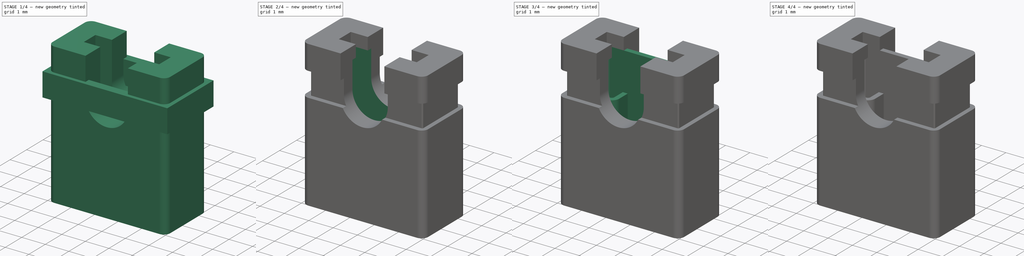
[diagram: build sequence overview — one tinted view per stage of 4, left to right]
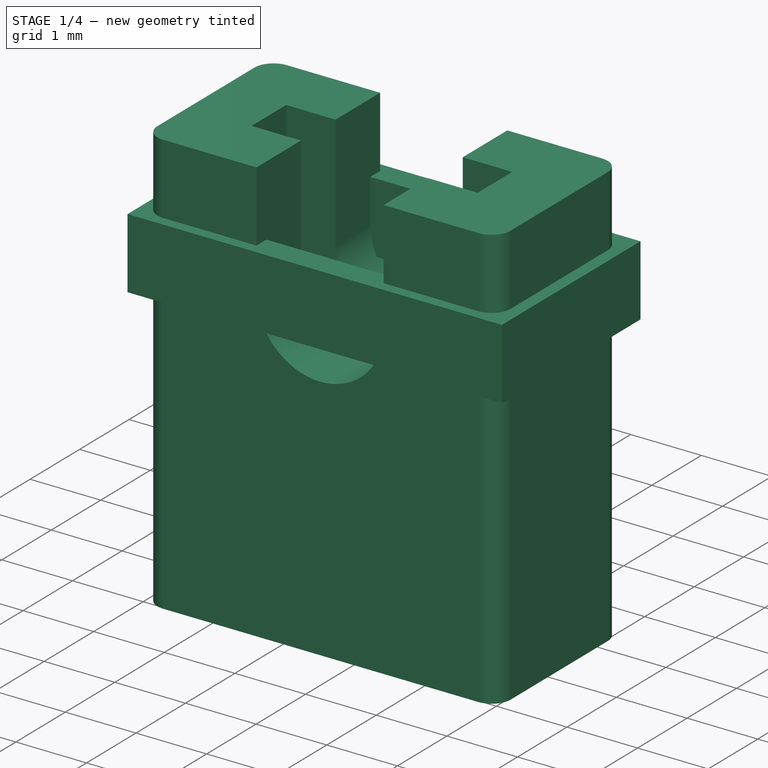
[diagram: stage 1 of 4 — iso view after this stage's code; geometry added in this stage tinted green]
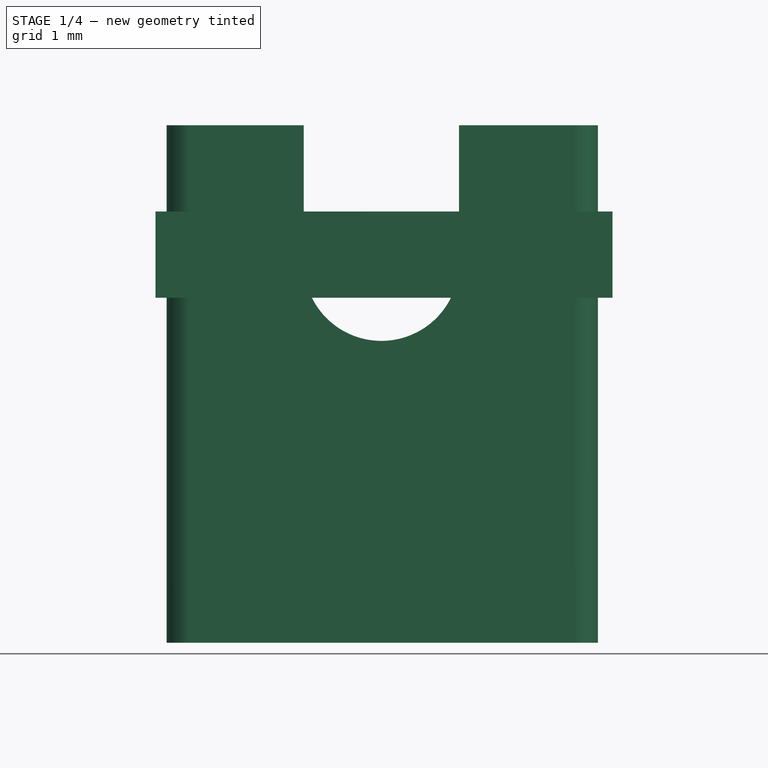
[diagram: stage 1 of 4 — front view after this stage's code; geometry added in this stage tinted green]
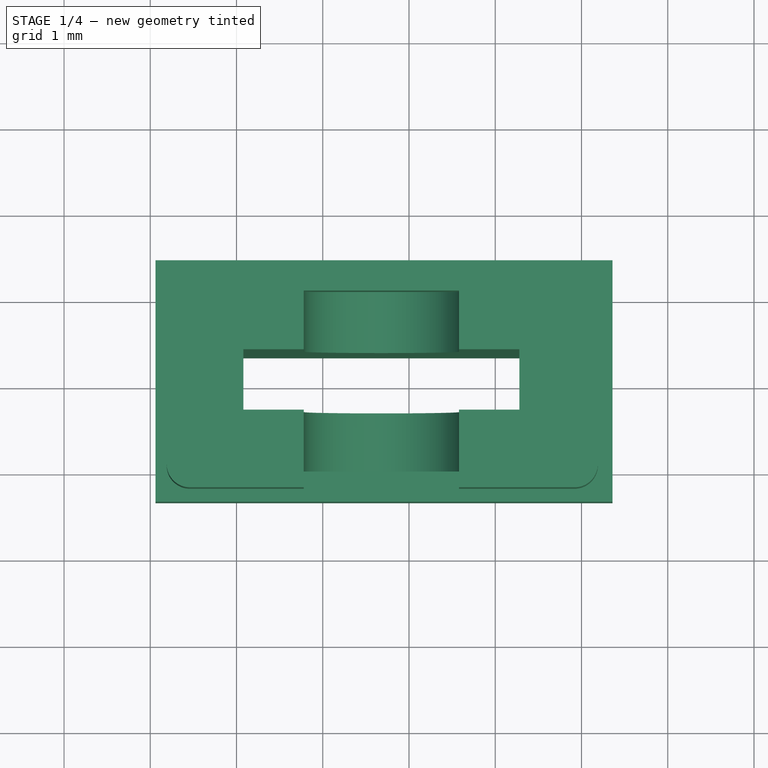
[diagram: stage 1 of 4 — top view after this stage's code; geometry added in this stage tinted green]
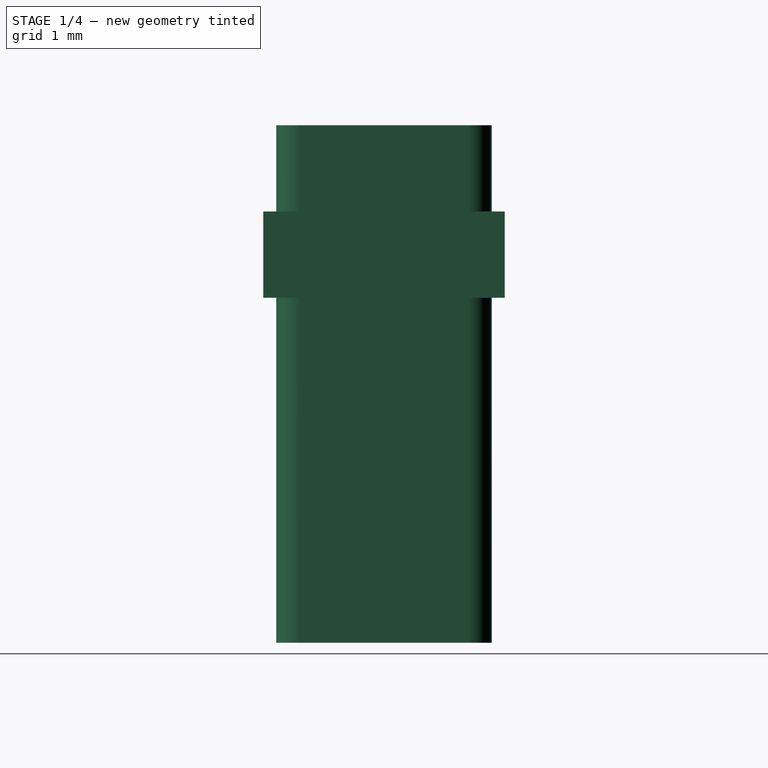
[diagram: stage 1 of 4 — right view after this stage's code; geometry added in this stage tinted green]
FCSTD DOCUMENT  (FreeCAD 0.16R6703 (Git))
Label: jumper-cap-2.54mm
License: All rights reserved
LicenseURL: http://en.wikipedia.org/wiki/All_rights_reserved
objects: Sketcher::SketchObject×7, PartDesign::Pad×4, PartDesign::Pocket×3, Part::FeaturePython×2, Part::Mirroring×1, Part::MultiFuse×1, Part::Cut×1, App::DocumentObjectGroup×1
note: 26 computed .brp shape members not serialized (recipe doc carries the construction recipe); baked Part::Feature solids carry a one-line shape summary decoded from their .brp

FEATURE [Sketcher::SketchObject] Sketch003  label="body-1-sketch"
  Placement = pos=(-1.32,0,2.54) rot=(0,0,1;0rad)
  sketch-geometry (16):
    g0: LineSegment StartX=-2.49 StartY=0.98 StartZ=0 EndX=-2.49 EndY=-0.98 EndZ=0
    g1: ArcOfCircle CenterX=-2.22 CenterY=0.98 CenterZ=0 NormalX=0 NormalY=0 NormalZ=1 Radius=0.27 StartAngle=1.5708 EndAngle=3.14159
    g2: LineSegment StartX=-2.22 StartY=1.25 StartZ=0 EndX=2.24 EndY=1.25 EndZ=0
    g3: LineSegment StartX=-1.6 StartY=0.35 StartZ=0 EndX=1.6 EndY=0.35 EndZ=0
    g4: LineSegment StartX=1.6 StartY=0.35 StartZ=0 EndX=1.6 EndY=-0.35 EndZ=0
    g5: LineSegment StartX=1.6 StartY=-0.35 StartZ=0 EndX=-1.6 EndY=-0.35 EndZ=0
    g6: LineSegment StartX=-1.6 StartY=-0.35 StartZ=0 EndX=-1.6 EndY=0.35 EndZ=0
    g7: ArcOfCircle CenterX=2.24 CenterY=0.98 CenterZ=0 NormalX=0 NormalY=0 NormalZ=1 Radius=0.27 StartAngle=0 EndAngle=1.5708
    g8: LineSegment StartX=2.51 StartY=0.98 StartZ=0 EndX=2.51 EndY=-0.98 EndZ=0
    g9: LineSegment [constr] StartX=-2.22 StartY=0.98 StartZ=0 EndX=2.24 EndY=0.98 EndZ=0
    g10: LineSegment [constr] StartX=2.24 StartY=0.98 StartZ=0 EndX=2.24 EndY=-0.98 EndZ=0
    g11: LineSegment [constr] StartX=2.24 StartY=-0.98 StartZ=0 EndX=-2.22 EndY=-0.98 EndZ=0
    g12: LineSegment [constr] StartX=-2.22 StartY=-0.98 StartZ=0 EndX=-2.22 EndY=0.98 EndZ=0
    g13: LineSegment StartX=-2.22 StartY=-1.25 StartZ=0 EndX=2.24 EndY=-1.25 EndZ=0
    g14: ArcOfCircle CenterX=-2.22 CenterY=-0.98 CenterZ=0 NormalX=0 NormalY=0 NormalZ=1 Radius=0.27 StartAngle=3.14159 EndAngle=4.71239
    g15: ArcOfCircle CenterX=2.24 CenterY=-0.98 CenterZ=0 NormalX=0 NormalY=0 NormalZ=1 Radius=0.27 StartAngle=4.71239 EndAngle=6.28319
  constraints (47):
    c: Coincident(g1,g0)
    c: Radius(g1) = 0.27
    c: Horizontal(g2)
    c: Coincident(g3,g4)
    c: Coincident(g4,g5)
    c: Coincident(g5,g6)
    c: Coincident(g6,g3)
    c: Horizontal(g3)
    c: Horizontal(g5)
    c: Vertical(g4)
    c: Vertical(g6)
    c: Coincident(g7,g2)
    c: Coincident(g8,g7)
    c: Vertical(g8)
    c: Symmetric(g0,g0,g-1)
    c: DistanceX(g0,g7) = 5
    c: DistanceX(g0,g3) = 0.89
    c: DistanceX(g5,g5) = 3.2
    c: DistanceY(g4,g4) = 0.7
    c: Symmetric(g3,g4,g-1)
    c: Coincident(g9,g10)
    c: Coincident(g10,g11)
    c: Coincident(g11,g12)
    c: Coincident(g12,g9)
    c: Horizontal(g9)
    c: Horizontal(g11)
    c: Vertical(g10)
    c: Vertical(g12)
    c: Coincident(g1,g9)
    c: PointOnObject(g0,g9)
    c: PointOnObject(g1,g12)
    c: Coincident(g9,g7)
    c: PointOnObject(g2,g10)
    c: PointOnObject(g7,g9)
    c: Coincident(g1,g2)
    c: PointOnObject(g0,g11)
    c: PointOnObject(g8,g11)
    c: Horizontal(g13)
    c: PointOnObject(g13,g12)
    c: PointOnObject(g13,g10)
    c: Coincident(g14,g11)
    c: Coincident(g14,g0)
    c: Coincident(g14,g13)
    c: Coincident(g15,g10)
    c: Coincident(g15,g13)
    c: Coincident(g15,g8)
    c: DistanceY(g13,g2) = 2.5
FEATURE [PartDesign::Pad] Pad002  label="body-1"
  Length = 6
  Length2 = 100
  Placement = pos=(-1.32,0,2.54) rot=(0,0,1;0rad)
  Sketch = -> Sketch003
  Type = 0
FEATURE [Sketcher::SketchObject] Sketch004  label="body-2-sketch"
  ExternalGeometry = -> [Pad002]
  Placement = pos=(-1.32,-1.25,2.54) rot=(1,0,0;1.5708rad)
  Support = -> Pad002 [Face6]
  sketch-geometry (5):
    g0: LineSegment StartX=-0.9 StartY=6 StartZ=0 EndX=0.9 EndY=6 EndZ=0
    g1: LineSegment StartX=-0.9 StartY=6 StartZ=0 EndX=-0.9 EndY=4.4 EndZ=0
    g2: LineSegment StartX=0.9 StartY=6 StartZ=0 EndX=0.9 EndY=4.4 EndZ=0
    g3: LineSegment [constr] StartX=-0.9 StartY=4.4 StartZ=0 EndX=0.9 EndY=4.4 EndZ=0
    g4: ArcOfCircle CenterX=0 CenterY=4.4 CenterZ=0 NormalX=0 NormalY=0 NormalZ=1 Radius=0.9 StartAngle=3.14159 EndAngle=6.28319
  constraints (15):
    c: Horizontal(g0)
    c: Coincident(g1,g0)
    c: Vertical(g1)
    c: Coincident(g2,g0)
    c: Vertical(g2)
    c: Symmetric(g0,g0,g-2)
    c: Coincident(g3,g1)
    c: Coincident(g3,g2)
    c: Horizontal(g3)
    c: Coincident(g4,g1)
    c: Coincident(g4,g2)
    c: PointOnObject(g4,g3)
    c: PointOnObject(g0,g-3)
    c: DistanceX(g3,g3) = 1.8
    c: DistanceY(g2,g2) = 1.6
FEATURE [PartDesign::Pocket] Pocket001  label="body-2"
  Length = 5
  Placement = pos=(-1.32,0,2.54) rot=(0,0,1;0rad)
  Sketch = -> Sketch004
  Type = 1
FEATURE [Sketcher::SketchObject] Sketch006  label="ring-sketch"
  Placement = pos=(0.01,0,6.54) rot=(0,0,1;0rad)
  sketch-geometry (19):
    g0: LineSegment [constr] StartX=-3.55 StartY=1 StartZ=0 EndX=0.95 EndY=1 EndZ=0
    g1: LineSegment [constr] StartX=0.95 StartY=1 StartZ=0 EndX=0.95 EndY=-1 EndZ=0
    g2: LineSegment [constr] StartX=0.95 StartY=-1 StartZ=0 EndX=-3.55 EndY=-1 EndZ=0
    g3: LineSegment [constr] StartX=-3.55 StartY=-1 StartZ=0 EndX=-3.55 EndY=1 EndZ=0
    g4: LineSegment [constr] StartX=-1.3 StartY=1 StartZ=0 EndX=-1.3 EndY=-1 EndZ=0
    g5: LineSegment [constr] StartX=-3.55 StartY=0 StartZ=0 EndX=-1.3 EndY=0 EndZ=0
    g6: LineSegment StartX=-3.6 StartY=1 StartZ=0 EndX=-3.6 EndY=-1 EndZ=0
    g7: LineSegment StartX=-3.55 StartY=1.05 StartZ=0 EndX=0.95 EndY=1.05 EndZ=0
    g8: ArcOfCircle CenterX=-3.55 CenterY=1 CenterZ=0 NormalX=0 NormalY=0 NormalZ=1 Radius=0.05 StartAngle=1.5708 EndAngle=3.14159
    g9: LineSegment StartX=-3.55 StartY=-1.05 StartZ=0 EndX=0.95 EndY=-1.05 EndZ=0
    g10: LineSegment StartX=1 StartY=1 StartZ=0 EndX=1 EndY=-1 EndZ=0
    g11: ArcOfCircle CenterX=-3.55 CenterY=-1 CenterZ=0 NormalX=0 NormalY=0 NormalZ=1 Radius=0.05 StartAngle=3.14159 EndAngle=4.71239
    g12: ArcOfCircle CenterX=0.95 CenterY=-1 CenterZ=0 NormalX=0 NormalY=0 NormalZ=1 Radius=0.05 StartAngle=4.71239 EndAngle=6.28319
    g13: ArcOfCircle CenterX=0.95 CenterY=1 CenterZ=0 NormalX=0 NormalY=0 NormalZ=1 Radius=0.05 StartAngle=0 EndAngle=1.5708
    g14: LineSegment StartX=-3.95 StartY=1.4 StartZ=0 EndX=1.35 EndY=1.4 EndZ=0
    g15: LineSegment StartX=1.35 StartY=1.4 StartZ=0 EndX=1.35 EndY=-1.4 EndZ=0
    g16: LineSegment StartX=1.35 StartY=-1.4 StartZ=0 EndX=-3.95 EndY=-1.4 EndZ=0
    g17: LineSegment StartX=-3.95 StartY=-1.4 StartZ=0 EndX=-3.95 EndY=1.4 EndZ=0
    g18: LineSegment [constr] StartX=0.95 StartY=1 StartZ=0 EndX=1.35 EndY=1.4 EndZ=0
  constraints (56):
    c: Coincident(g0,g1)
    c: Coincident(g1,g2)
    c: Coincident(g2,g3)
    c: Coincident(g3,g0)
    c: Horizontal(g2)
    c: Vertical(g1)
    c: DistanceX(g0,g0) = 4.5
    c: DistanceY(g3,g3) = 2
    c: PointOnObject(g4,g0)
    c: PointOnObject(g4,g2)
    c: Vertical(g4)
    c: PointOnObject(g5,g3)
    c: PointOnObject(g5,g4)
    c: Horizontal(g5)
    c: PointOnObject(g5,g-1)
    c: Symmetric(g0,g0,g4)
    c: Symmetric(g0,g2,g5)
    c: Vertical(g6)
    c: Horizontal(g7)
    c: Coincident(g8,g0)
    c: Coincident(g8,g6)
    c: Coincident(g8,g7)
    c: Radius(g8) = 0.05
    c: PointOnObject(g6,g0)
    c: PointOnObject(g7,g3)
    c: PointOnObject(g6,g2)
    c: PointOnObject(g7,g1)
    c: DistanceX(g5,g-1) = 1.3
    c: Horizontal(g9)
    c: PointOnObject(g9,g3)
    c: PointOnObject(g9,g1)
    c: Vertical(g10)
    c: PointOnObject(g10,g2)
    c: PointOnObject(g10,g0)
    c: Coincident(g11,g2)
    c: Coincident(g11,g6)
    c: Coincident(g11,g9)
    c: Coincident(g12,g1)
    c: Coincident(g12,g9)
    c: Coincident(g12,g10)
    c: Coincident(g13,g0)
    c: Coincident(g13,g10)
    c: Coincident(g13,g7)
    c: Coincident(g14,g15)
    c: Coincident(g15,g16)
    c: Coincident(g16,g17)
    c: Coincident(g17,g14)
    c: Horizontal(g14)
    c: Horizontal(g16)
    c: Vertical(g15)
    c: Vertical(g17)
    c: Symmetric(g14,g15,g5)
    c: Coincident(g18,g0)
    c: Coincident(g18,g14)
    c: Angle(g18,g-1) = 2.35619
    c: DistanceX(g0,g14) = 0.4
FEATURE [PartDesign::Pad] Pad003  label="ring-outside"
  Length = 1
  Length2 = 100
  Placement = pos=(0.01,0,6.54) rot=(0,0,1;0rad)
  Sketch = -> Sketch006
  Type = 0
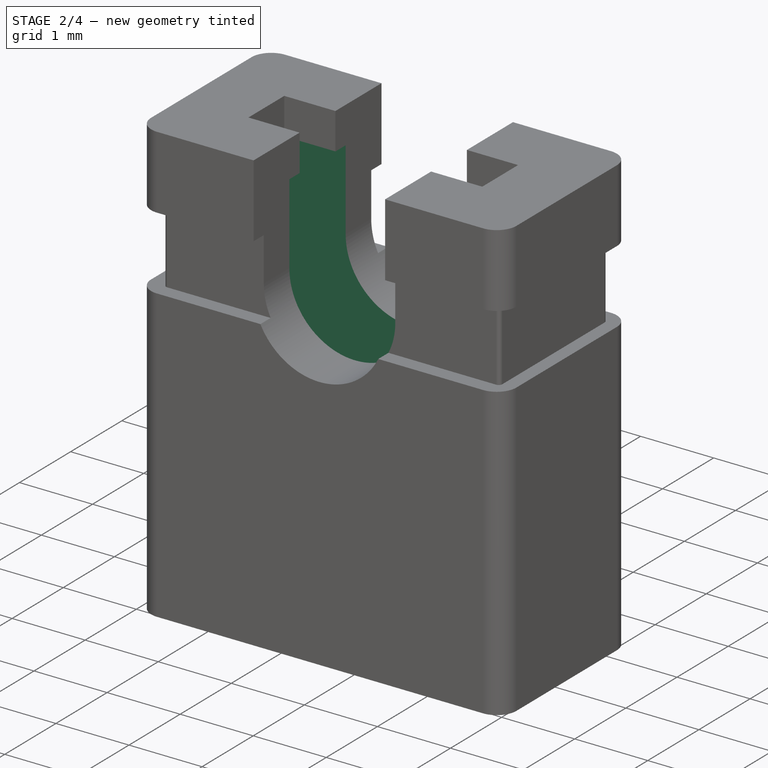
[diagram: stage 2 of 4 — iso view after this stage's code; geometry added in this stage tinted green]
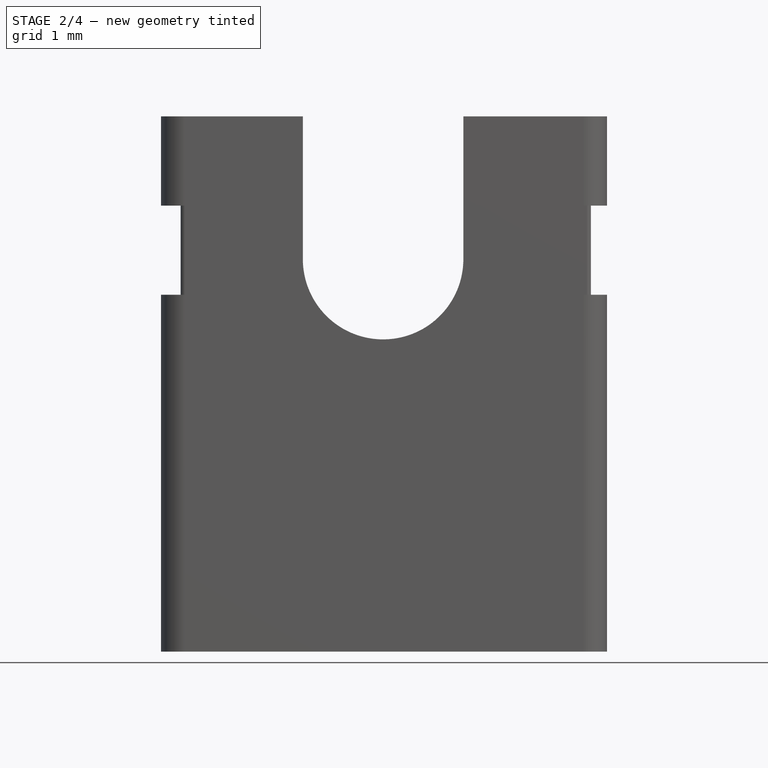
[diagram: stage 2 of 4 — front view after this stage's code; geometry added in this stage tinted green]
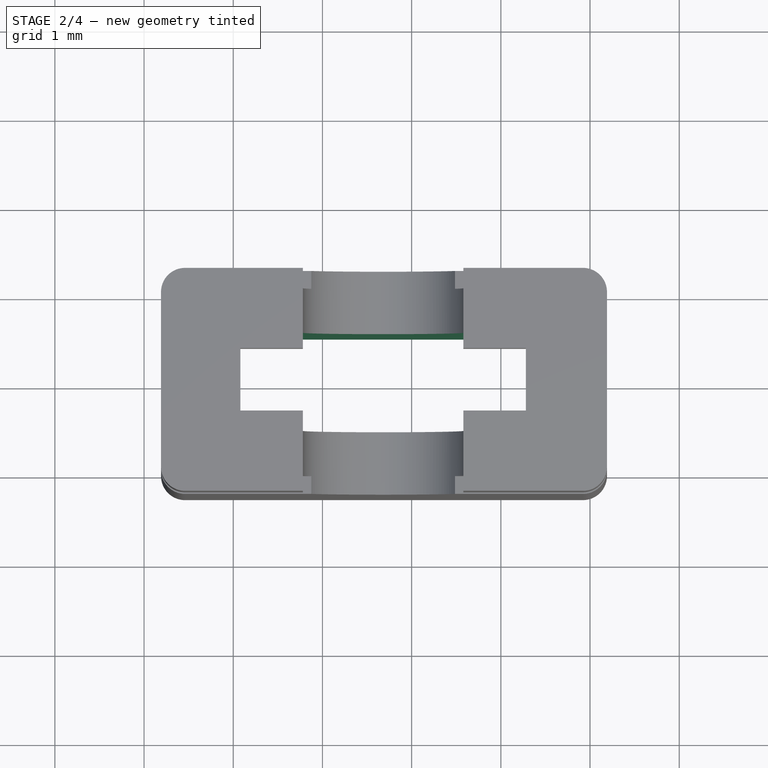
[diagram: stage 2 of 4 — top view after this stage's code; geometry added in this stage tinted green]
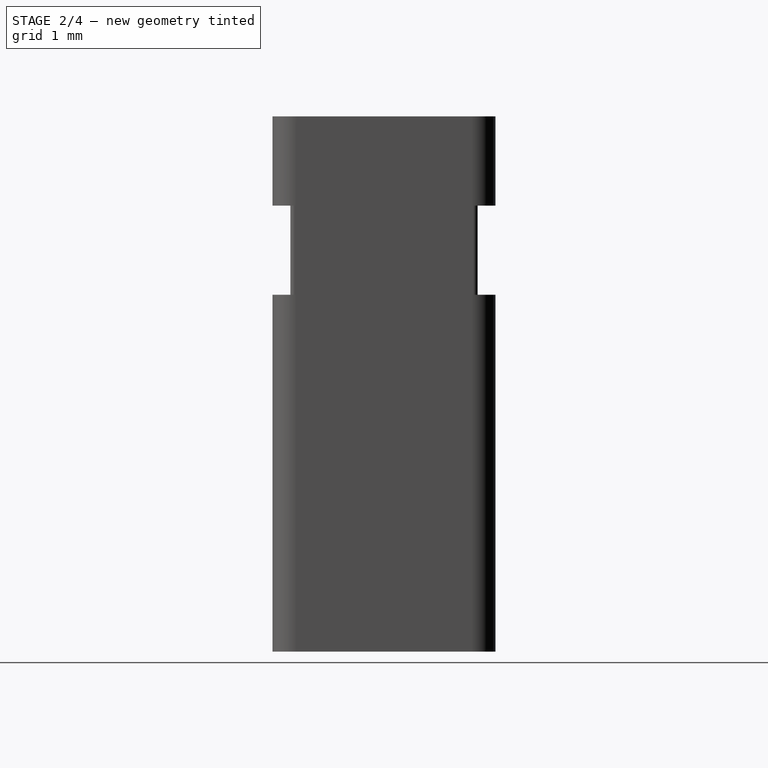
[diagram: stage 2 of 4 — right view after this stage's code; geometry added in this stage tinted green]
FEATURE [Sketcher::SketchObject] Sketch005
  Placement = pos=(-1.32,0,2.54) rot=(1,0,0;3.14159rad)
  Support = -> Pocket001 [Face4]
  sketch-geometry (4):
    g0: LineSegment StartX=-1.85 StartY=0.55 StartZ=0 EndX=1.85 EndY=0.55 EndZ=0
    g1: LineSegment StartX=1.85 StartY=0.55 StartZ=0 EndX=1.85 EndY=-0.55 EndZ=0
    g2: LineSegment StartX=1.85 StartY=-0.55 StartZ=0 EndX=-1.85 EndY=-0.55 EndZ=0
    g3: LineSegment StartX=-1.85 StartY=-0.55 StartZ=0 EndX=-1.85 EndY=0.55 EndZ=0
  constraints (11):
    c: Coincident(g0,g1)
    c: Coincident(g1,g2)
    c: Coincident(g2,g3)
    c: Coincident(g3,g0)
    c: Horizontal(g0)
    c: Horizontal(g2)
    c: Vertical(g1)
    c: Vertical(g3)
    c: Symmetric(g0,g1,g-1)
    c: DistanceY(g1,g1) = 1.1
    c: DistanceX(g2,g2) = 3.7
FEATURE [PartDesign::Pocket] Pocket002  label="body-3"
  Length = 5.5
  Placement = pos=(-1.32,0,2.54) rot=(0,0,1;0rad)
  Sketch = -> Sketch005
  Type = 0
FEATURE [Part::Cut] Cut  label="body-final"
  Base = -> Pocket002
  Tool = -> Pad003
FEATURE [App::DocumentObjectGroup] Group  label="src"
  Group = -> [Pad,Fusion,Pad002,Pocket001,Cut]
FEATURE [Part::FeaturePython] Clone001  label="jumper-body"  # Draft clone (typed FeaturePython)
  Objects = -> [Cut]
  Scale = (1,1,1)
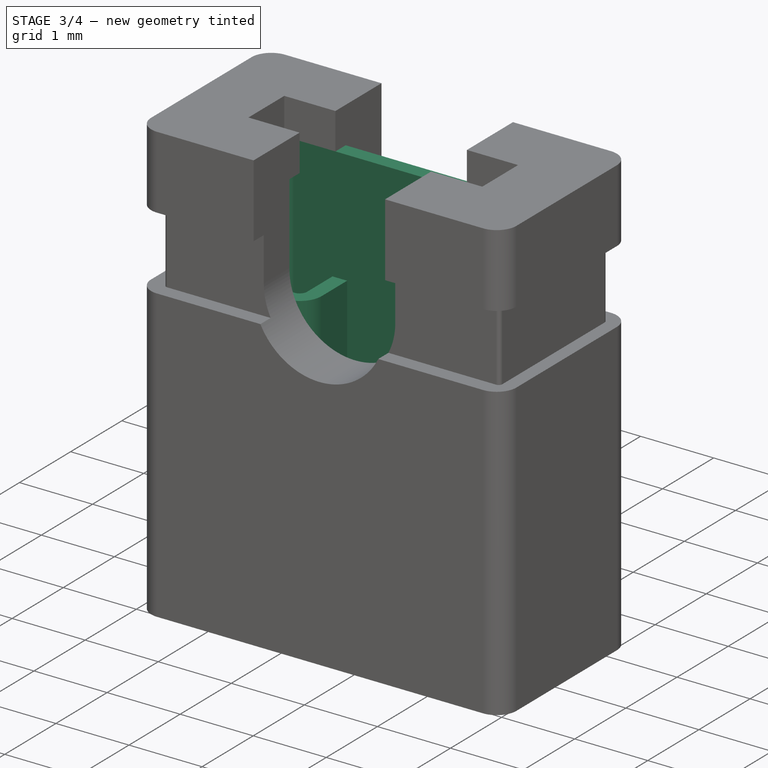
[diagram: stage 3 of 4 — iso view after this stage's code; geometry added in this stage tinted green]
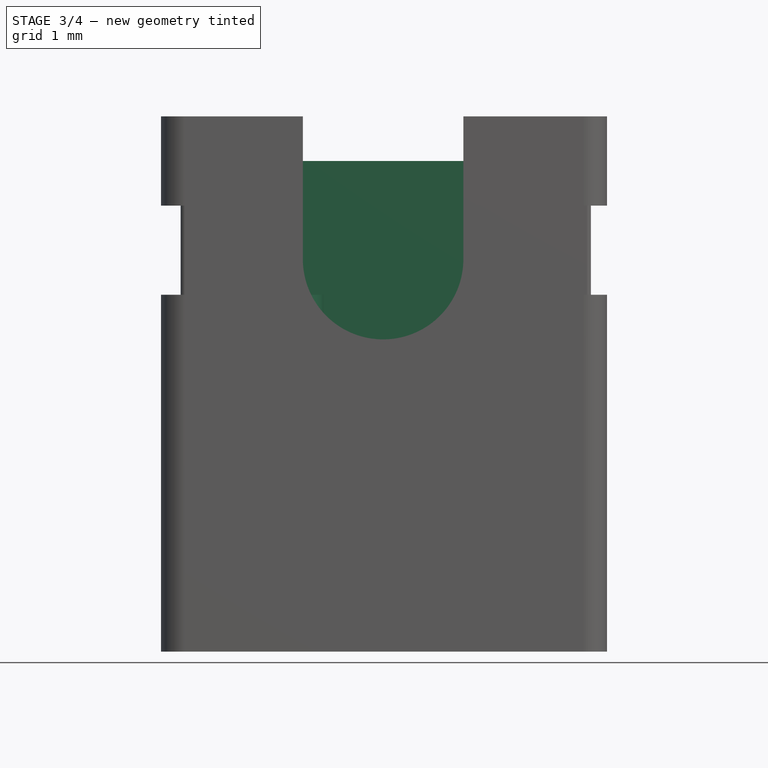
[diagram: stage 3 of 4 — front view after this stage's code; geometry added in this stage tinted green]
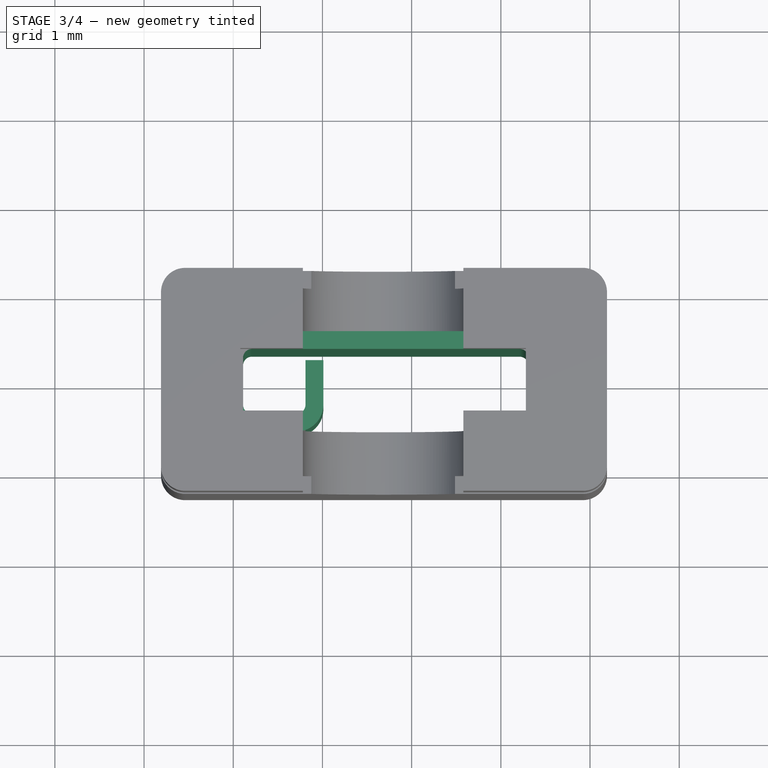
[diagram: stage 3 of 4 — top view after this stage's code; geometry added in this stage tinted green]
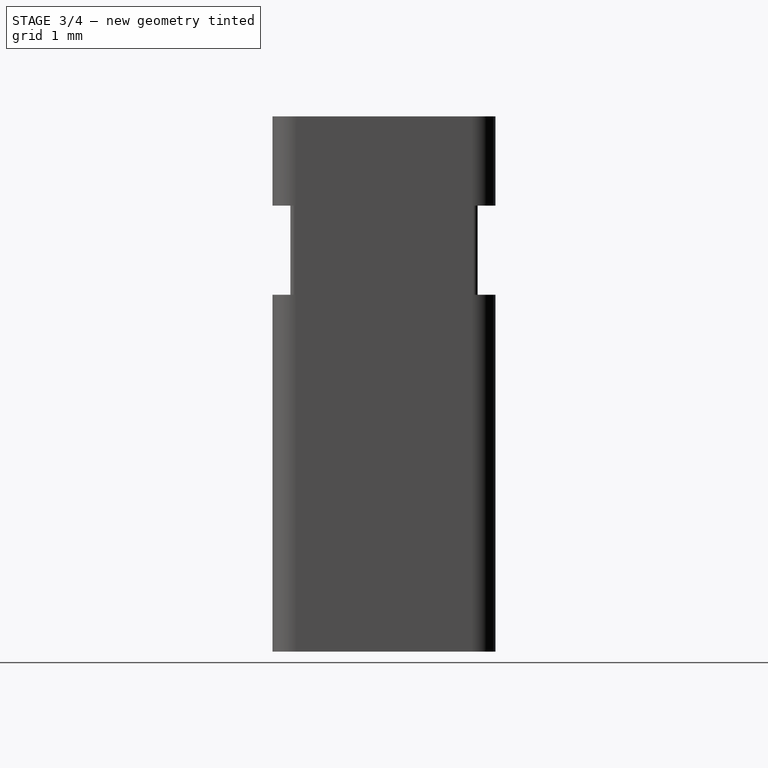
[diagram: stage 3 of 4 — right view after this stage's code; geometry added in this stage tinted green]
FEATURE [Sketcher::SketchObject] Sketch  label="jumper-plate-sketch-1"
  Placement = pos=(-1.29,0.349885,3.04) rot=(0,0,1;0rad)
  sketch-geometry (16):
    g0: LineSegment StartX=-1.8 StartY=-0.1 StartZ=0 EndX=-1.8 EndY=-0.769 EndZ=0
    g1: LineSegment StartX=-1.8 StartY=-0.769 StartZ=0 EndX=-1.6 EndY=-0.769 EndZ=0
    g2: LineSegment StartX=-1.6 StartY=-0.769 StartZ=0 EndX=-1.6 EndY=-0.1 EndZ=0
    g3: LineSegment [constr] StartX=-1.8 StartY=-0.1 StartZ=0 EndX=-1.6 EndY=-0.1 EndZ=0
    g4: LineSegment StartX=-1.5 StartY=0.2 StartZ=0 EndX=1.5 EndY=0.2 EndZ=0
    g5: LineSegment [constr] StartX=1.5 StartY=0.2 StartZ=0 EndX=1.5 EndY=0 EndZ=0
    g6: LineSegment StartX=1.5 StartY=0 StartZ=0 EndX=-1.5 EndY=0 EndZ=0
    g7: LineSegment [constr] StartX=-1.5 StartY=0 StartZ=0 EndX=-1.5 EndY=0.2 EndZ=0
    g8: LineSegment [constr] StartX=0 StartY=0.2 StartZ=0 EndX=0 EndY=0 EndZ=0
    g9: ArcOfCircle CenterX=-1.5 CenterY=-0.1 CenterZ=0 NormalX=0 NormalY=0 NormalZ=1 Radius=0.1 StartAngle=1.5708 EndAngle=3.14159
    g10: ArcOfCircle CenterX=-1.5 CenterY=-0.1 CenterZ=0 NormalX=0 NormalY=0 NormalZ=1 Radius=0.3 StartAngle=1.5708 EndAngle=3.14159
    g11: LineSegment StartX=1.6 StartY=-0.1 StartZ=0 EndX=1.6 EndY=-0.769 EndZ=0
    g12: LineSegment StartX=1.6 StartY=-0.769 StartZ=0 EndX=1.8 EndY=-0.769 EndZ=0
    g13: LineSegment StartX=1.8 StartY=-0.769 StartZ=0 EndX=1.8 EndY=-0.100003 EndZ=0
    g14: ArcOfCircle CenterX=1.5 CenterY=-0.1 CenterZ=0 NormalX=0 NormalY=0 NormalZ=1 Radius=0.1 StartAngle=0 EndAngle=1.5708
    g15: ArcOfCircle CenterX=1.5 CenterY=-0.1 CenterZ=0 NormalX=0 NormalY=0 NormalZ=1 Radius=0.3 StartAngle=6.28317 EndAngle=7.85398
  constraints (45):
    c: Vertical(g0)
    c: Coincident(g0,g1)
    c: Horizontal(g1)
    c: Coincident(g1,g2)
    c: Vertical(g2)
    c: Coincident(g3,g0)
    c: Coincident(g3,g2)
    c: Horizontal(g3)
    c: DistanceX(g1,g1) = 0.2
    c: DistanceY(g0,g0) = 0.669
    c: Coincident(g4,g5)
    c: Coincident(g5,g6)
    c: Coincident(g6,g7)
    c: Coincident(g7,g4)
    c: Horizontal(g6)
    c: Vertical(g5)
    c: Vertical(g7)
    c: DistanceX(g4,g4) = 3
    c: Equal(g1,g7)
    c: PointOnObject(g8,g4)
    c: PointOnObject(g8,g6)
    c: Vertical(g8)
    c: Symmetric(g4,g4,g8)
    c: Coincident(g9,g2)
    c: Coincident(g9,g6)
    c: PointOnObject(g9,g3)
    c: PointOnObject(g9,g7)
    c: Radius(g9) = 0.1
    c: Coincident(g10,g9)
    c: Coincident(g10,g0)
    c: Coincident(g10,g4)
    c: Coincident(g8,g-1)
    c: Vertical(g11)
    c: Coincident(g11,g12)
    c: Horizontal(g12)
    c: Coincident(g12,g13)
    c: Vertical(g13)
    c: Symmetric(g12,g0,g-2)
    c: Symmetric(g11,g2,g-2)
    c: Coincident(g14,g5)
    c: Coincident(g14,g11)
    c: Symmetric(g9,g14,g-2)
    c: Coincident(g15,g14)
    c: Coincident(g15,g4)
    c: Coincident(g15,g13)
FEATURE [PartDesign::Pad] Pad  label="jumper-plate-1"
  Length = 5
  Length2 = 100
  Placement = pos=(-1.29,0.349885,3.04) rot=(0,0,1;0rad)
  Sketch = -> Sketch
  Type = 0
FEATURE [Sketcher::SketchObject] Sketch002  label="jumper-plate-side-1-sketch"
  Placement = pos=(-0.29,-0.55,3.54) rot=(0,0,1;0rad)
  sketch-geometry (16):
    g0: LineSegment StartX=0 StartY=0.2 StartZ=0 EndX=0.5 EndY=0.2 EndZ=0
    g1: LineSegment [constr] StartX=0.5 StartY=0.2 StartZ=0 EndX=0.5 EndY=0 EndZ=0
    g2: LineSegment StartX=0.5 StartY=0 StartZ=0 EndX=0 EndY=0 EndZ=0
    g3: LineSegment [constr] StartX=0 StartY=0 StartZ=0 EndX=0 EndY=0.2 EndZ=0
    g4: LineSegment StartX=-0.3 StartY=0.3 StartZ=0 EndX=-0.1 EndY=0.3 EndZ=0
    g5: ArcOfCircle CenterX=0 CenterY=0.3 CenterZ=0 NormalX=0 NormalY=0 NormalZ=1 Radius=0.1 StartAngle=3.14159 EndAngle=4.71239
    g6: LineSegment [constr] StartX=-0.1 StartY=0.3 StartZ=0 EndX=0 EndY=0.3 EndZ=0
    g7: LineSegment [constr] StartX=0 StartY=0.3 StartZ=0 EndX=0 EndY=0.2 EndZ=0
    g8: LineSegment [constr] StartX=0.25 StartY=0.2 StartZ=0 EndX=0.25 EndY=0 EndZ=0
    g9: ArcOfCircle CenterX=0 CenterY=0.3 CenterZ=0 NormalX=0 NormalY=0 NormalZ=1 Radius=0.3 StartAngle=3.14159 EndAngle=4.71239
    g10: LineSegment StartX=-0.3 StartY=0.3 StartZ=0 EndX=-0.3 EndY=0.8 EndZ=0
    g11: LineSegment StartX=-0.3 StartY=0.8 StartZ=0 EndX=-0.1 EndY=0.8 EndZ=0
    g12: LineSegment StartX=-0.1 StartY=0.8 StartZ=0 EndX=-0.1 EndY=0.3 EndZ=0
    g13: LineSegment StartX=0.6 StartY=0.3 StartZ=0 EndX=0.8 EndY=0.3 EndZ=0
    g14: ArcOfCircle CenterX=0.5 CenterY=0.3 CenterZ=0 NormalX=0 NormalY=0 NormalZ=1 Radius=0.1 StartAngle=4.71239 EndAngle=6.28319
    g15: ArcOfCircle CenterX=0.5 CenterY=0.3 CenterZ=0 NormalX=0 NormalY=0 NormalZ=1 Radius=0.3 StartAngle=4.71239 EndAngle=6.28319
  constraints (44):
    c: Coincident(g0,g1)
    c: Coincident(g1,g2)
    c: Coincident(g2,g3)
    c: Coincident(g3,g0)
    c: Horizontal(g0)
    c: Horizontal(g2)
    c: Vertical(g1)
    c: Vertical(g3)
    c: Horizontal(g4)
    c: Coincident(g5,g0)
    c: Coincident(g5,g4)
    c: Coincident(g6,g4)
    c: Horizontal(g6)
    c: Coincident(g5,g6)
    c: Vertical(g7)
    c: Coincident(g7,g5)
    c: Coincident(g7,g0)
    c: Radius(g5) = 0.1
    c: DistanceX(g0,g0) = 0.5
    c: PointOnObject(g8,g0)
    c: PointOnObject(g8,g2)
    c: Symmetric(g0,g0,g8)
    c: Coincident(g9,g5)
    c: Coincident(g9,g2)
    c: Coincident(g9,g4)
    c: DistanceY(g3,g3) = 0.2
    c: Vertical(g10)
    c: Coincident(g10,g11)
    c: Horizontal(g11)
    c: Coincident(g11,g12)
    c: Coincident(g12,g4)
    c: Vertical(g12)
    c: Coincident(g10,g4)
    c: DistanceY(g10,g10) = 0.5
    c: Horizontal(g13)
    c: Symmetric(g13,g4,g8)
    c: Coincident(g14,g0)
    c: Coincident(g14,g13)
    c: Symmetric(g14,g5,g8)
    c: Symmetric(g13,g4,g8)
    c: Coincident(g15,g14)
    c: Coincident(g15,g1)
    c: Coincident(g15,g13)
    c: Coincident(g2,g-1)
FEATURE [PartDesign::Pad] Pad001  label="jumper-plate-side-1"
  Length = 3
  Length2 = 100
  Placement = pos=(-0.29,-0.55,3.54) rot=(0,0,1;0rad)
  Sketch = -> Sketch002
  Type = 0
FEATURE [Part::Mirroring] Part__Mirroring  label="jumper-plate-side2"
  Base = (0,0,0)
  Normal = (1,0,0)
  Placement = pos=(-2.58,0.000884962,0) rot=(0,0,1;0rad)
  Source = -> Pad001
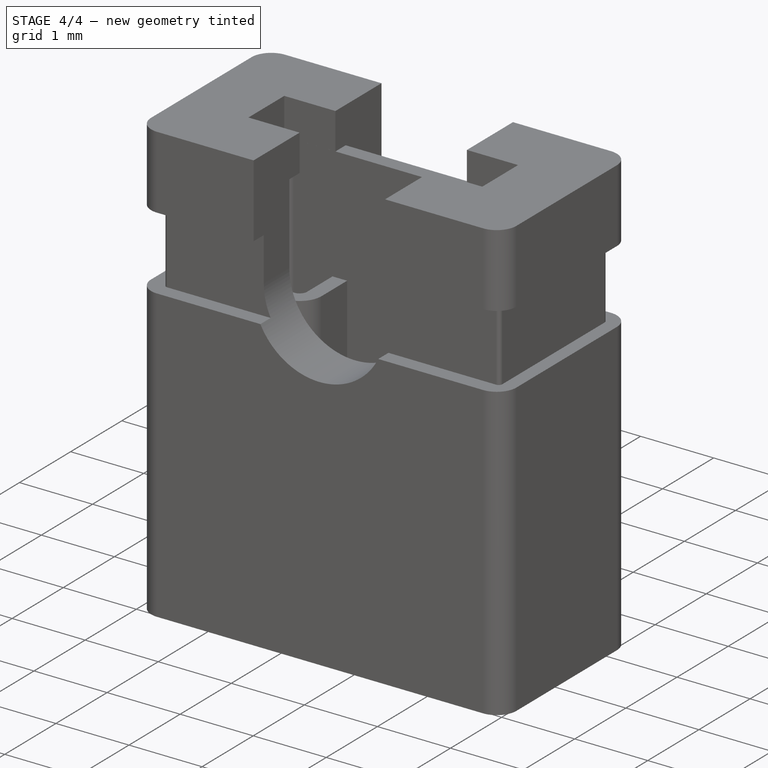
[diagram: stage 4 of 4 — iso view after this stage's code; geometry added in this stage tinted green]
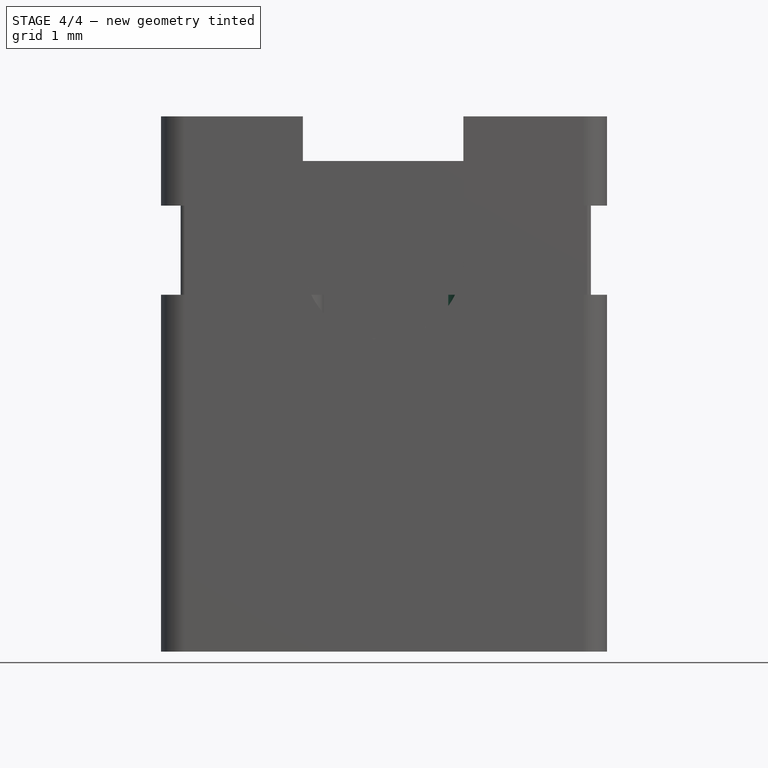
[diagram: stage 4 of 4 — front view after this stage's code; geometry added in this stage tinted green]
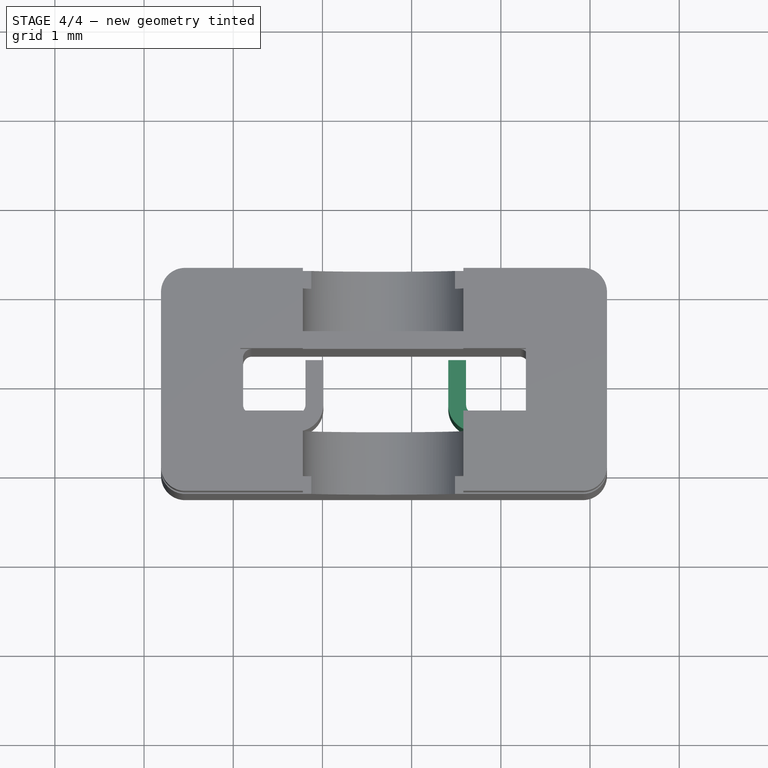
[diagram: stage 4 of 4 — top view after this stage's code; geometry added in this stage tinted green]
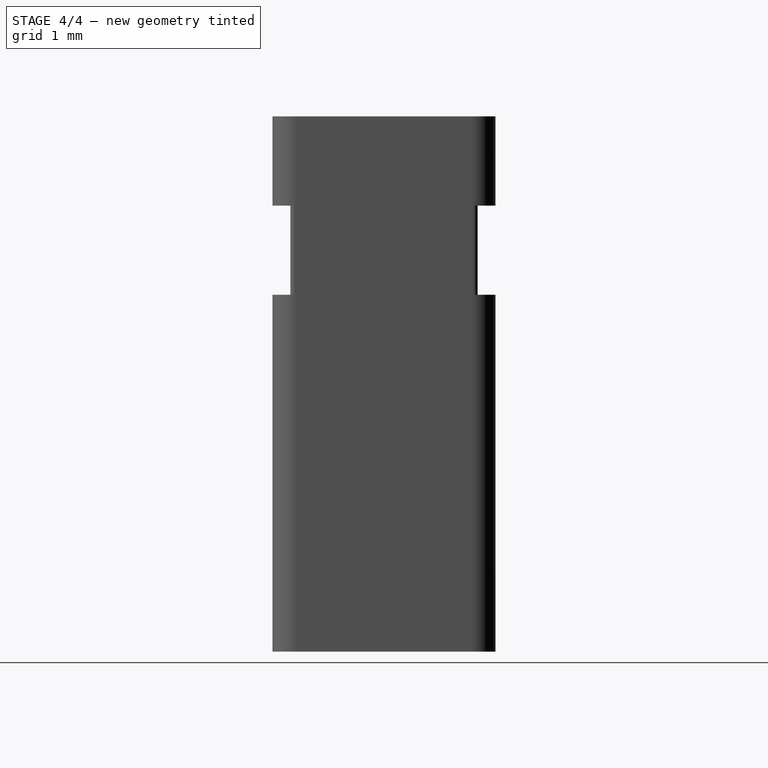
[diagram: stage 4 of 4 — right view after this stage's code; geometry added in this stage tinted green]
FEATURE [Sketcher::SketchObject] Sketch001  label="jumper-plate-sketch-2"
  ExternalGeometry = -> [Pad]
  Placement = pos=(0.51,0.349885,3.04) rot=(0.57735,0.57735,0.57735;2.0944rad)
  Support = -> Pad [Face10]
  sketch-geometry (14):
    g0: LineSegment StartX=-0.769 StartY=0.3 StartZ=0 EndX=-0.599 EndY=0.3 EndZ=0
    g1: LineSegment StartX=-0.599 StartY=0.5 StartZ=0 EndX=-0.599 EndY=3.5 EndZ=0
    g2: LineSegment [constr] StartX=-0.599 StartY=0.5 StartZ=0 EndX=-0.599 EndY=0.3 EndZ=0
    g3: ArcOfCircle CenterX=-0.599 CenterY=0.445 CenterZ=0 NormalX=0 NormalY=0 NormalZ=1 Radius=0.055 StartAngle=0 EndAngle=1.5708
    g4: LineSegment [constr] StartX=-0.599 StartY=0.445 StartZ=0 EndX=-0.544 EndY=0.445 EndZ=0
    g5: LineSegment StartX=-0.544 StartY=0.445 StartZ=0 EndX=-0.544 EndY=0.355 EndZ=0
    g6: ArcOfCircle CenterX=-0.599 CenterY=0.355 CenterZ=0 NormalX=0 NormalY=0 NormalZ=1 Radius=0.055 StartAngle=4.71239 EndAngle=6.28319
    g7: LineSegment [constr] StartX=-0.599 StartY=2 StartZ=0 EndX=-0.769 EndY=2 EndZ=0
    g8: LineSegment StartX=-0.769 StartY=3.7 StartZ=0 EndX=-0.599 EndY=3.7 EndZ=0
    g9: ArcOfCircle CenterX=-0.599 CenterY=3.645 CenterZ=0 NormalX=0 NormalY=0 NormalZ=1 Radius=0.055 StartAngle=0 EndAngle=1.5708
    g10: LineSegment StartX=-0.544 StartY=3.645 StartZ=0 EndX=-0.544 EndY=3.555 EndZ=0
    g11: ArcOfCircle CenterX=-0.599 CenterY=3.555 CenterZ=0 NormalX=0 NormalY=0 NormalZ=1 Radius=0.055 StartAngle=4.71239 EndAngle=6.28319
    g12: LineSegment StartX=-0.769 StartY=3.7 StartZ=0 EndX=-0.769 EndY=0.3 EndZ=0
    g13: LineSegment [constr] StartX=-0.599 StartY=0.355 StartZ=0 EndX=-0.544 EndY=0.355 EndZ=0
  constraints (41):
    c: PointOnObject(g0,g-3)
    c: Horizontal(g0)
    c: Vertical(g1)
    c: Coincident(g2,g1)
    c: Coincident(g2,g0)
    c: Vertical(g2)
    c: DistanceY(g2,g2) = 0.2
    c: PointOnObject(g3,g2)
    c: Coincident(g3,g1)
    c: Coincident(g4,g3)
    c: Coincident(g4,g3)
    c: Horizontal(g4)
    c: Radius(g3) = 0.055
    c: Tangent(g3,g5) = 1.5708
    c: PointOnObject(g6,g2)
    c: Coincident(g6,g5)
    c: Coincident(g6,g0)
    c: DistanceY(g1,g1) = 3
    c: PointOnObject(g7,g1)
    c: Horizontal(g7)
    c: Symmetric(g1,g1,g7)
    c: DistanceX(g0,g0) = 0.17
    c: DistanceY(g-3,g0) = 0.3
    c: PointOnObject(g7,g-3)
    c: Horizontal(g8)
    c: Coincident(g9,g8)
    c: Coincident(g10,g9)
    c: Vertical(g10)
    c: Coincident(g10,g11)
    c: Coincident(g11,g1)
    c: Symmetric(g11,g3,g7)
    c: Symmetric(g9,g6,g7)
    c: Symmetric(g10,g3,g7)
    c: Symmetric(g8,g0,g7)
    c: Symmetric(g9,g5,g7)
    c: Coincident(g12,g8)
    c: Coincident(g12,g0)
    c: Vertical(g12)
    c: Horizontal(g13)
    c: Coincident(g13,g6)
    c: Coincident(g13,g5)
FEATURE [PartDesign::Pocket] Pocket  label="jumper-plate-2"
  Length = 5
  Placement = pos=(-1.29,0.349885,3.04) rot=(0,0,1;0rad)
  Sketch = -> Sketch001
  Type = 1
FEATURE [Part::MultiFuse] Fusion  label="jumper-plate"
  Shapes = -> [Pocket,Part__Mirroring,Pad001]
FEATURE [Part::FeaturePython] Clone  label="Jumper-plate"  # Draft clone (typed FeaturePython)
  Objects = -> [Fusion]
  Scale = (1,1,1)
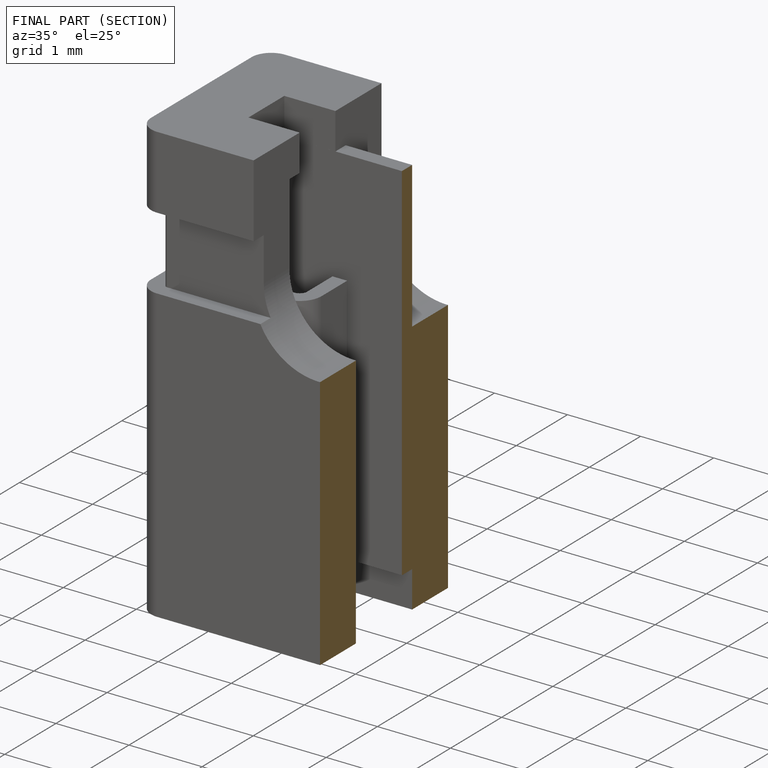
[diagram: finished part — half-section view (interior)]
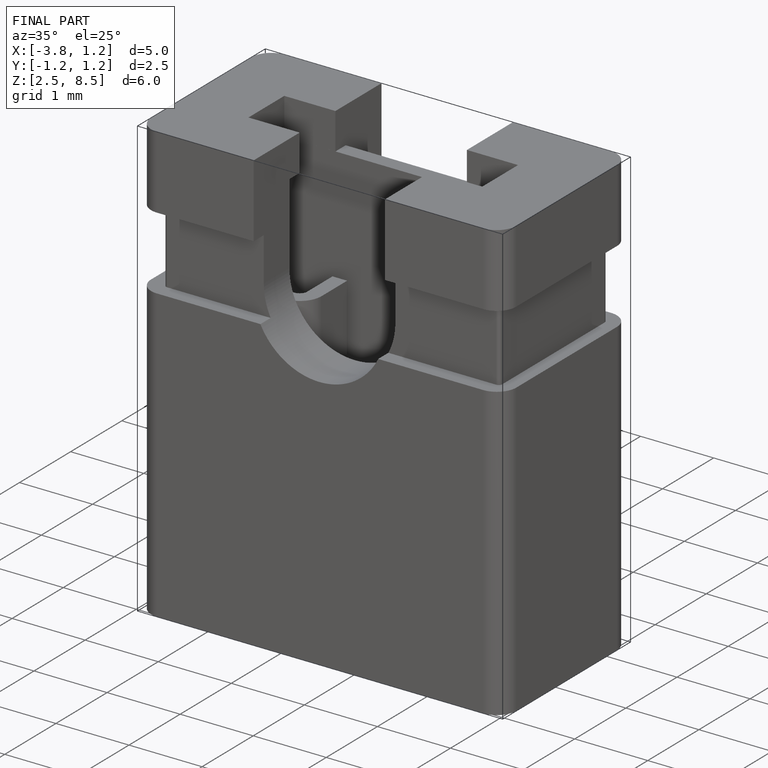
[diagram: finished part — iso view with bounding-box wireframe]
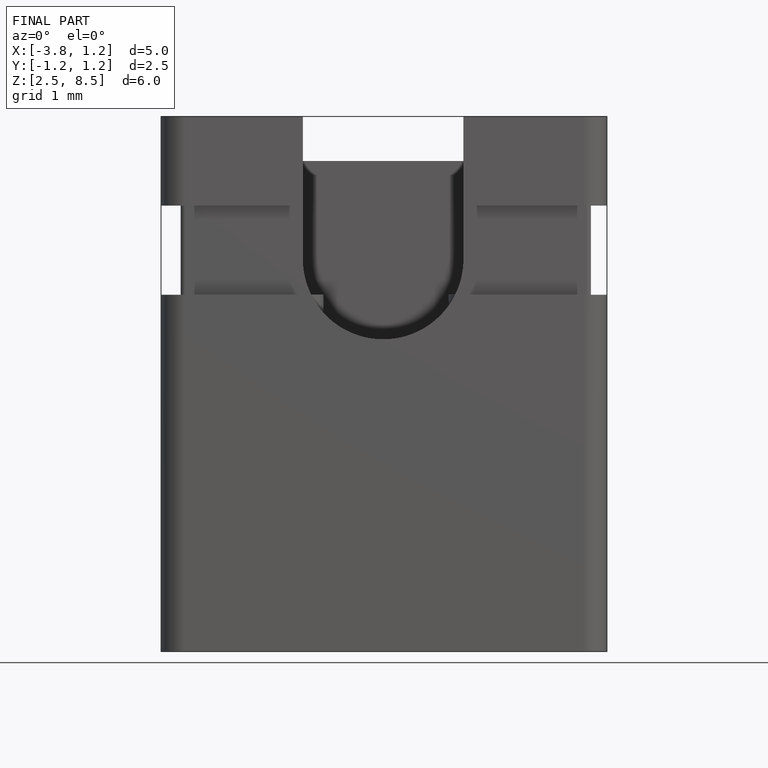
[diagram: finished part — front view with bounding-box wireframe]
